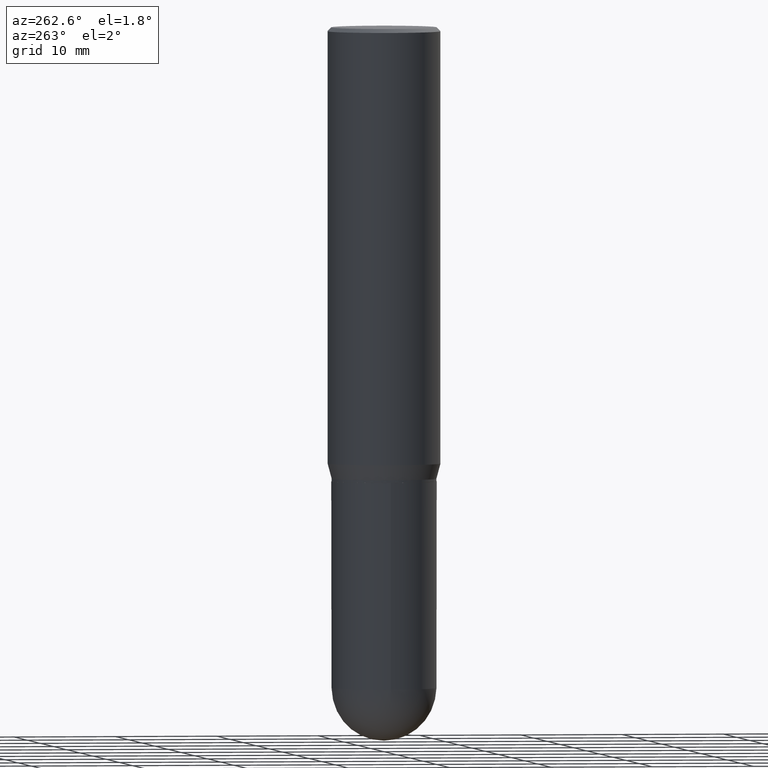
[diagram: clean part render]
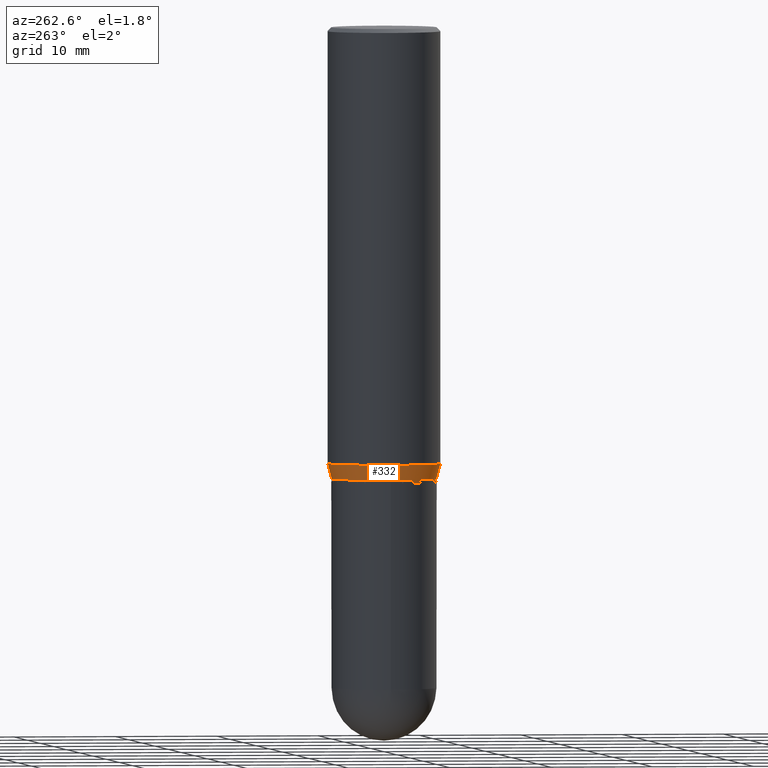
[diagram: same view with one face highlighted and labeled with its STEP entity id]
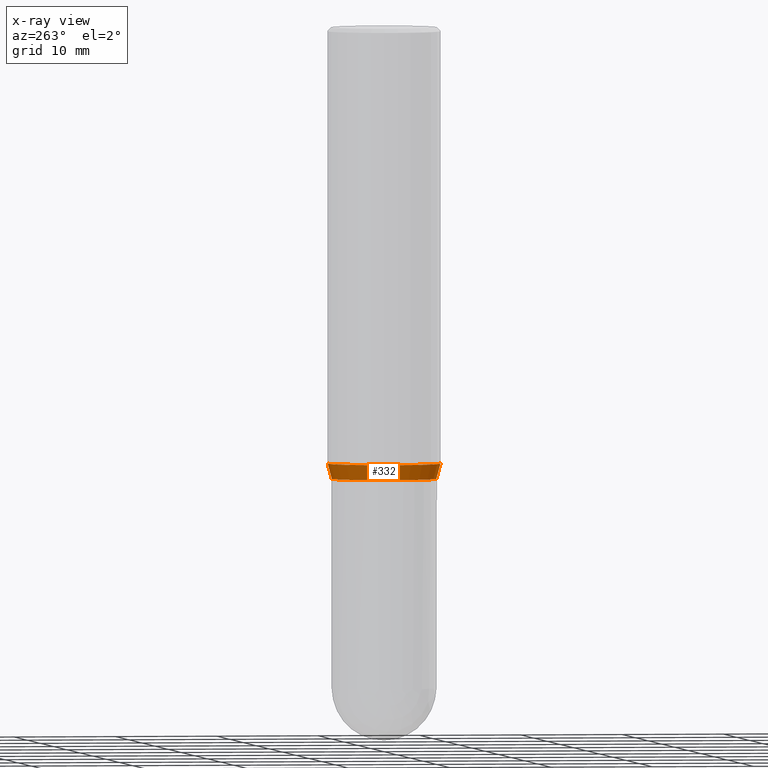
[diagram: x-ray of the same camera — body ghosted, the highlighted face saturated]
A machine part, auxiliary view. The second image highlights one B-rep face of the part: STEP entity #332.
The next image is the same camera in x-ray: the body ghosted, the highlighted face saturated — about 0% of this face is hidden behind the body in this view.
In plain terms, the highlighted conical surface has half-angle 15 deg.
Its self-contained STEP definition (entity closure, byte-faithful):
#50 = AXIS2_PLACEMENT_3D ( 'NONE', #358, #497, #508 ) ;
#60 = CIRCLE ( 'NONE', #218, 0.2187500000000000000 ) ;
#63 = DIRECTION ( 'NONE',  ( -6.982962677686265133E-15, -1.000000000000000000, 3.746534391310989557E-15 ) ) ;
#70 = DIRECTION ( 'NONE',  ( -2.445218819430257669E-29, 3.491839334104495039E-15, 1.000000000000000000 ) ) ;
#79 = CARTESIAN_POINT ( 'NONE',  ( 4.254680745808648669E-29, -6.075800441341822188E-15, -1.739999999999999991 ) ) ;
#91 = CARTESIAN_POINT ( 'NONE',  ( 1.498712265402032742E-15, 0.2030999999999938688, -1.740000000000000879 ) ) ;
#92 = CARTESIAN_POINT ( 'NONE',  ( 4.111863840197258972E-29, -5.871853995066253491E-15, -1.681593404861546848 ) ) ;
#104 = DIRECTION ( 'NONE',  ( -1.807323732225323040E-15, -0.2588190451025171868, 0.9659258262890693114 ) ) ;
#135 = ORIENTED_EDGE ( 'NONE', *, *, #193, .T. ) ;
#141 = EDGE_LOOP ( 'NONE', ( #267, #313, #135, #338 ) ) ;
#151 = EDGE_CURVE ( 'NONE', #176, #309, #60, .T. ) ;
#154 = CARTESIAN_POINT ( 'NONE',  ( -1.418239719838037782E-15, -0.2031000000000060257, -1.739999999999999103 ) ) ;
#176 = VERTEX_POINT ( 'NONE', #305 ) ;
#181 = FACE_OUTER_BOUND ( 'NONE', #141, .T. ) ;
#187 = LINE ( 'NONE', #197, #321 ) ;
#193 = EDGE_CURVE ( 'NONE', #492, #309, #187, .T. ) ;
#197 = CARTESIAN_POINT ( 'NONE',  ( -1.418239719838037782E-15, -0.2031000000000060257, -1.739999999999999103 ) ) ;
#218 = AXIS2_PLACEMENT_3D ( 'NONE', #92, #298, #63 ) ;
#224 = EDGE_CURVE ( 'NONE', #293, #492, #371, .T. ) ;
#232 = CARTESIAN_POINT ( 'NONE',  ( -1.527523085743829428E-15, -0.2187500000000058287, -1.681593404861545960 ) ) ;
#237 = EDGE_CURVE ( 'NONE', #293, #176, #406, .T. ) ;
#240 = VECTOR ( 'NONE', #279, 39.37007874015748143 ) ;
#252 = AXIS2_PLACEMENT_3D ( 'NONE', #79, #70, #502 ) ;
#267 = ORIENTED_EDGE ( 'NONE', *, *, #237, .F. ) ;
#270 = CARTESIAN_POINT ( 'NONE',  ( 1.443112296328805307E-15, 0.2030999999999938688, -1.740000000000000879 ) ) ;
#279 = DIRECTION ( 'NONE',  ( 1.839019923739593216E-15, 0.2588190451025239591, 0.9659258262890674240 ) ) ;
#293 = VERTEX_POINT ( 'NONE', #91 ) ;
#298 = DIRECTION ( 'NONE',  ( -2.445218819430257669E-29, 3.491839334104495039E-15, 1.000000000000000000 ) ) ;
#305 = CARTESIAN_POINT ( 'NONE',  ( 1.554312234475260177E-15, 0.2187499999999941436, -1.681593404861547736 ) ) ;
#309 = VERTEX_POINT ( 'NONE', #232 ) ;
#313 = ORIENTED_EDGE ( 'NONE', *, *, #224, .T. ) ;
#321 = VECTOR ( 'NONE', #104, 39.37007874015748854 ) ;
#332 = ADVANCED_FACE ( 'NONE', ( #181 ), #351, .T. ) ;
#338 = ORIENTED_EDGE ( 'NONE', *, *, #151, .F. ) ;
#351 = CONICAL_SURFACE ( 'NONE', #50, 0.2030999999999999472, 0.2617993877991492413 ) ;
#358 = CARTESIAN_POINT ( 'NONE',  ( 4.254680745808648669E-29, -6.075800441341822188E-15, -1.739999999999999991 ) ) ;
#371 = CIRCLE ( 'NONE', #252, 0.2030999999999999472 ) ;
#406 = LINE ( 'NONE', #270, #240 ) ;
#492 = VERTEX_POINT ( 'NONE', #154 ) ;
#497 = DIRECTION ( 'NONE',  ( -2.445218819430257669E-29, 3.491839334104495039E-15, 1.000000000000000000 ) ) ;
#502 = DIRECTION ( 'NONE',  ( -6.982962677686266711E-15, -1.000000000000000000, 4.035225987687243463E-15 ) ) ;
#508 = DIRECTION ( 'NONE',  ( -6.982962677686266711E-15, -1.000000000000000000, 4.035225987687243463E-15 ) ) ;